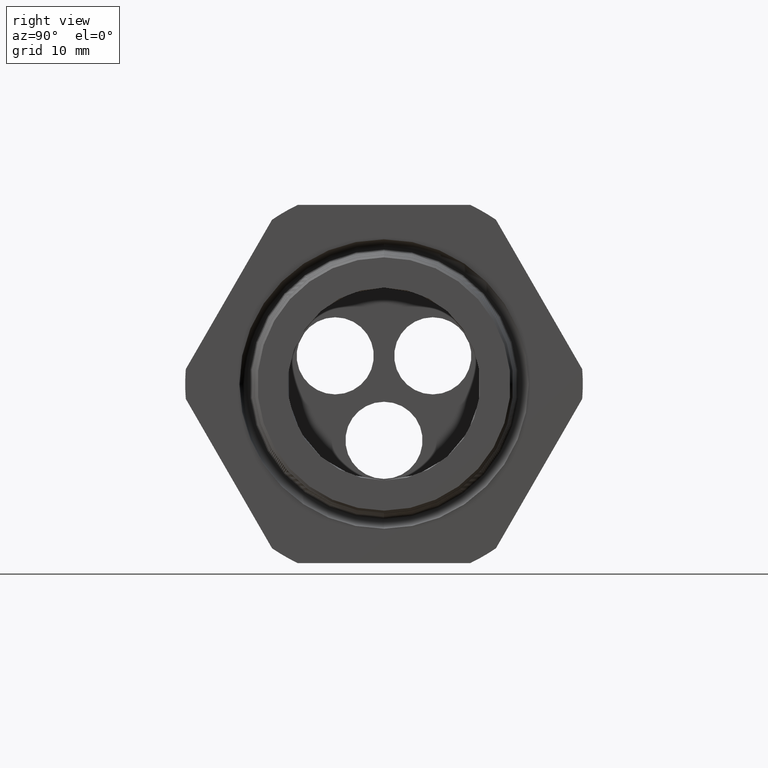
[diagram: clean part render]
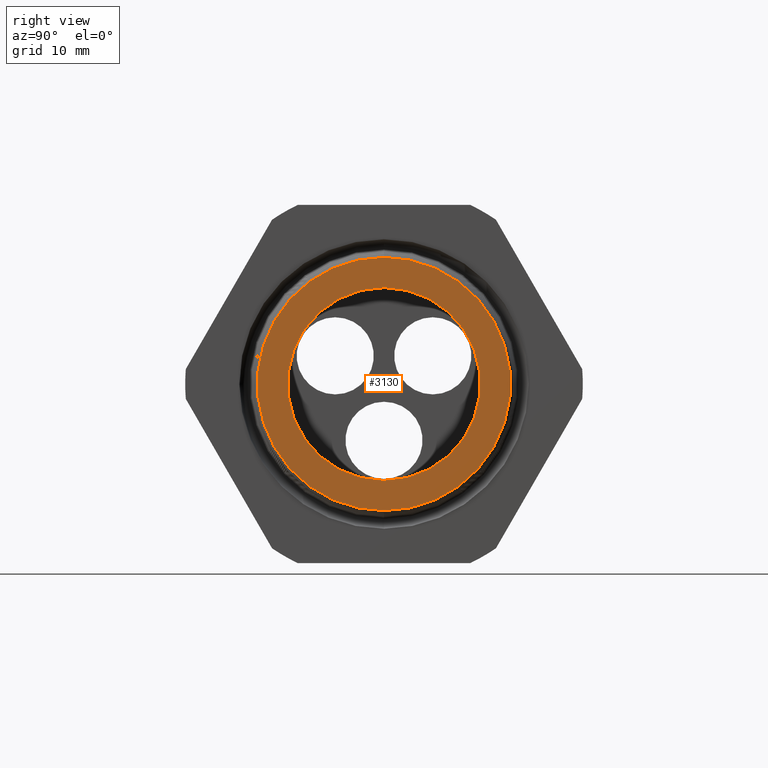
[diagram: same view with one face highlighted and labeled with its STEP entity id]
A machine part, right view. The second image highlights one B-rep face of the part: STEP entity #3130.
In plain terms, the highlighted planar face has unit normal (1, 0, 0).
Its self-contained STEP definition (entity closure, byte-faithful):
#1977 = CARTESIAN_POINT ( 'NONE',  ( 0.2800000000000000300, 5.683103485507543200E-017, -0.4595730491353136600 ) ) ;
#2039 = DIRECTION ( 'NONE',  ( 0.0000000000000000000, 0.0000000000000000000, -1.000000000000000000 ) ) ;
#2040 = DIRECTION ( 'NONE',  ( 1.000000000000000000, 0.0000000000000000000, 0.0000000000000000000 ) ) ;
#2041 = CARTESIAN_POINT ( 'NONE',  ( 0.2800000000000000300, 0.0000000000000000000, 0.0000000000000000000 ) ) ;
#2042 = AXIS2_PLACEMENT_3D ( 'NONE', #2041, #2040, #2039 ) ;
#2043 = CIRCLE ( 'NONE', #2042, 0.4595730491353136600 ) ;
#2044 = CARTESIAN_POINT ( 'NONE',  ( 0.2800000000000000300, 0.0000000000000000000, 0.4595730491353136600 ) ) ;
#2101 = DIRECTION ( 'NONE',  ( 0.0000000000000000000, 0.0000000000000000000, -1.000000000000000000 ) ) ;
#2102 = DIRECTION ( 'NONE',  ( 1.000000000000000000, 0.0000000000000000000, 0.0000000000000000000 ) ) ;
#2103 = CARTESIAN_POINT ( 'NONE',  ( 0.2800000000000000300, 0.0000000000000000000, 0.0000000000000000000 ) ) ;
#2104 = AXIS2_PLACEMENT_3D ( 'NONE', #2103, #2102, #2101 ) ;
#2105 = CIRCLE ( 'NONE', #2104, 0.3499412086880983000 ) ;
#2569 = VERTEX_POINT ( 'NONE', #4594 ) ;
#2570 = VERTEX_POINT ( 'NONE', #4593 ) ;
#3130 = ADVANCED_FACE ( 'NONE', ( #5792, #5786 ), #5785, .T. ) ;
#3131 = EDGE_LOOP ( 'NONE', ( #3132, #3134 ) ) ;
#3132 = ORIENTED_EDGE ( 'NONE', *, *, #3133, .T. ) ;
#3133 = EDGE_CURVE ( 'NONE', #6229, #6198, #5780, .T. ) ;
#3134 = ORIENTED_EDGE ( 'NONE', *, *, #6230, .T. ) ;
#3135 = EDGE_LOOP ( 'NONE', ( #3191, #3192 ) ) ;
#3191 = ORIENTED_EDGE ( 'NONE', *, *, #6258, .F. ) ;
#3192 = ORIENTED_EDGE ( 'NONE', *, *, #3193, .F. ) ;
#3193 = EDGE_CURVE ( 'NONE', #2569, #2570, #5872, .T. ) ;
#4593 = CARTESIAN_POINT ( 'NONE',  ( 0.2800000000000000300, 0.0000000000000000000, 0.3499412086880983000 ) ) ;
#4594 = CARTESIAN_POINT ( 'NONE',  ( 0.2800000000000000300, 4.316519974034729800E-017, -0.3499412086880983000 ) ) ;
#5776 = DIRECTION ( 'NONE',  ( 0.0000000000000000000, 0.0000000000000000000, -1.000000000000000000 ) ) ;
#5777 = DIRECTION ( 'NONE',  ( 1.000000000000000000, 0.0000000000000000000, 0.0000000000000000000 ) ) ;
#5778 = CARTESIAN_POINT ( 'NONE',  ( 0.2800000000000000300, 0.0000000000000000000, 0.0000000000000000000 ) ) ;
#5779 = AXIS2_PLACEMENT_3D ( 'NONE', #5778, #5777, #5776 ) ;
#5780 = CIRCLE ( 'NONE', #5779, 0.4595730491353136600 ) ;
#5781 = DIRECTION ( 'NONE',  ( 0.0000000000000000000, 0.0000000000000000000, -1.000000000000000000 ) ) ;
#5782 = DIRECTION ( 'NONE',  ( 1.000000000000000000, 0.0000000000000000000, 0.0000000000000000000 ) ) ;
#5783 = CARTESIAN_POINT ( 'NONE',  ( 0.2800000000000000300, 0.3499412086880983000, 0.0000000000000000000 ) ) ;
#5784 = AXIS2_PLACEMENT_3D ( 'NONE', #5783, #5782, #5781 ) ;
#5785 = PLANE ( 'NONE',  #5784 ) ;
#5786 = FACE_BOUND ( 'NONE', #3135, .T. ) ;
#5792 = FACE_OUTER_BOUND ( 'NONE', #3131, .T. ) ;
#5868 = DIRECTION ( 'NONE',  ( 0.0000000000000000000, 0.0000000000000000000, -1.000000000000000000 ) ) ;
#5869 = DIRECTION ( 'NONE',  ( 1.000000000000000000, 0.0000000000000000000, 0.0000000000000000000 ) ) ;
#5870 = CARTESIAN_POINT ( 'NONE',  ( 0.2800000000000000300, 0.0000000000000000000, 0.0000000000000000000 ) ) ;
#5871 = AXIS2_PLACEMENT_3D ( 'NONE', #5870, #5869, #5868 ) ;
#5872 = CIRCLE ( 'NONE', #5871, 0.3499412086880983000 ) ;
#6198 = VERTEX_POINT ( 'NONE', #1977 ) ;
#6229 = VERTEX_POINT ( 'NONE', #2044 ) ;
#6230 = EDGE_CURVE ( 'NONE', #6198, #6229, #2043, .T. ) ;
#6258 = EDGE_CURVE ( 'NONE', #2570, #2569, #2105, .T. ) ;